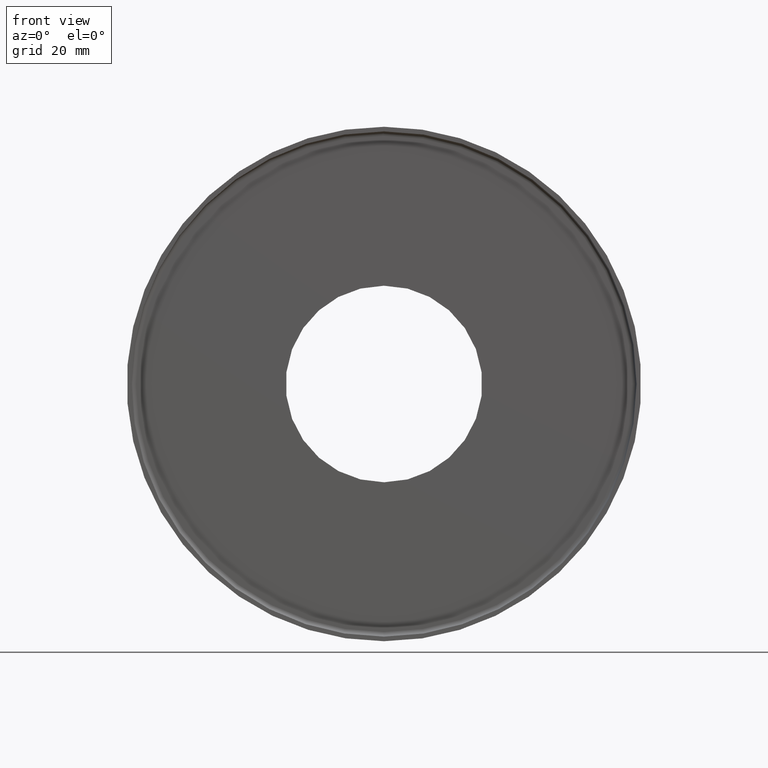
[diagram: clean part render]
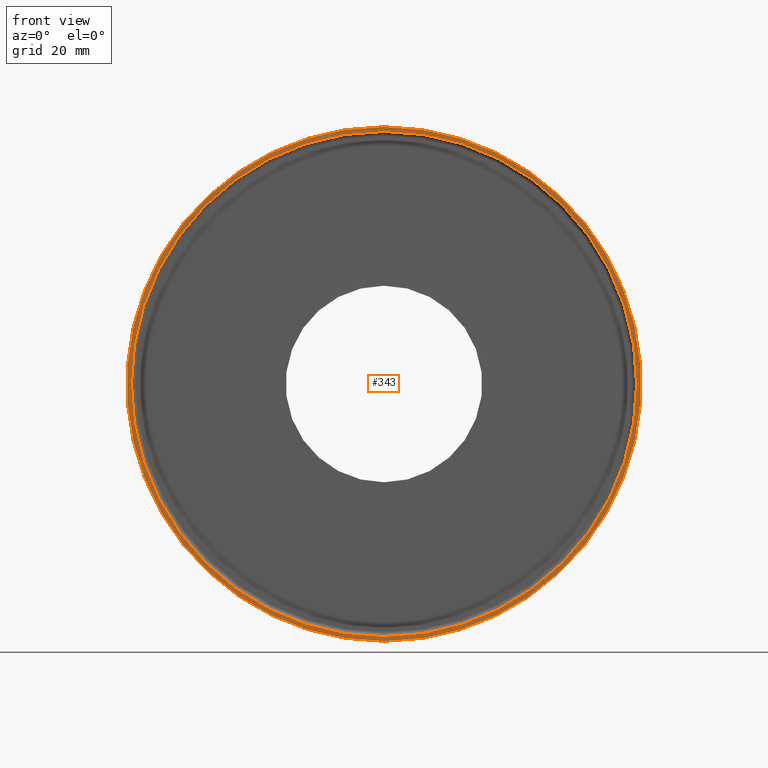
[diagram: same view with one face highlighted and labeled with its STEP entity id]
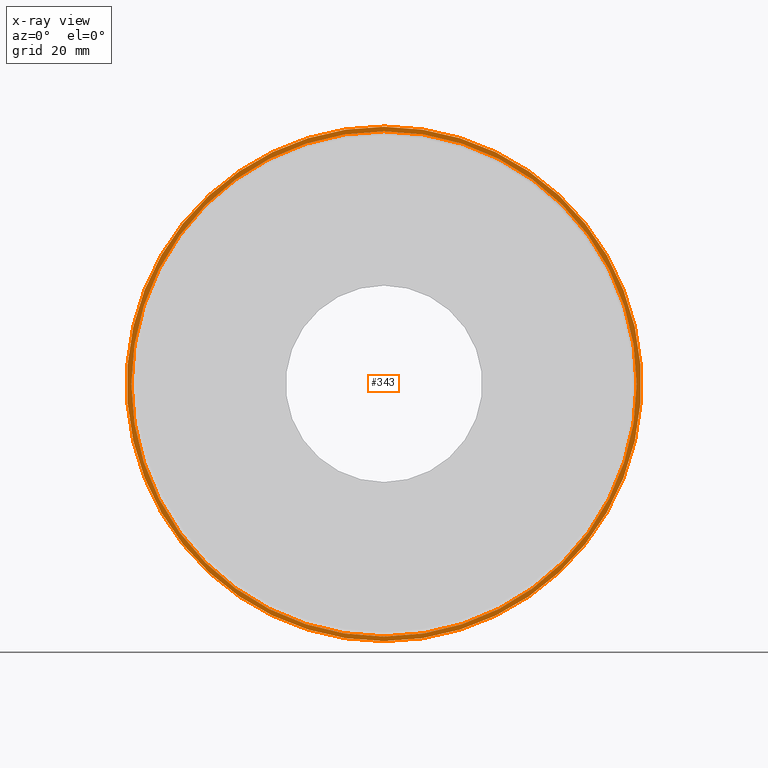
[diagram: x-ray of the same camera — body ghosted, the highlighted face saturated]
A machine part, front view. The second image highlights one B-rep face of the part: STEP entity #343.
The next image is the same camera in x-ray: the body ghosted, the highlighted face saturated — about 0% of this face is hidden behind the body in this view.
In plain terms, the highlighted planar face has unit normal (0, 1, 0).
Its self-contained STEP definition (entity closure, byte-faithful):
#19 = DIRECTION ( 'NONE',  ( 0.0000000000000000000, 1.000000000000000000, 0.0000000000000000000 ) ) ;
#41 = AXIS2_PLACEMENT_3D ( 'NONE', #135, #19, #226 ) ;
#47 = CARTESIAN_POINT ( 'NONE',  ( 6.858022075225179300E-015, 0.0000000000000000000, 56.00000000000000700 ) ) ;
#52 = DIRECTION ( 'NONE',  ( 0.0000000000000000000, 1.000000000000000000, 0.0000000000000000000 ) ) ;
#57 = PLANE ( 'NONE',  #394 ) ;
#73 = AXIS2_PLACEMENT_3D ( 'NONE', #395, #87, #362 ) ;
#74 = CARTESIAN_POINT ( 'NONE',  ( 6.735557395310444200E-015, 0.0000000000000000000, 55.00000000000000700 ) ) ;
#79 = EDGE_CURVE ( 'NONE', #251, #177, #169, .T. ) ;
#85 = CARTESIAN_POINT ( 'NONE',  ( 0.0000000000000000000, 0.0000000000000000000, 0.0000000000000000000 ) ) ;
#86 = DIRECTION ( 'NONE',  ( 0.0000000000000000000, -0.0000000000000000000, 1.000000000000000000 ) ) ;
#87 = DIRECTION ( 'NONE',  ( 0.0000000000000000000, 1.000000000000000000, 0.0000000000000000000 ) ) ;
#108 = CIRCLE ( 'NONE', #192, 55.00000000000000700 ) ;
#125 = CIRCLE ( 'NONE', #41, 56.00000000000000700 ) ;
#135 = CARTESIAN_POINT ( 'NONE',  ( 0.0000000000000000000, 0.0000000000000000000, 0.0000000000000000000 ) ) ;
#142 = EDGE_LOOP ( 'NONE', ( #397, #229 ) ) ;
#155 = ORIENTED_EDGE ( 'NONE', *, *, #79, .F. ) ;
#161 = CARTESIAN_POINT ( 'NONE',  ( 0.0000000000000000000, 0.0000000000000000000, 0.0000000000000000000 ) ) ;
#169 = CIRCLE ( 'NONE', #180, 56.00000000000000700 ) ;
#170 = CARTESIAN_POINT ( 'NONE',  ( 0.0000000000000000000, 0.0000000000000000000, 0.0000000000000000000 ) ) ;
#177 = VERTEX_POINT ( 'NONE', #47 ) ;
#180 = AXIS2_PLACEMENT_3D ( 'NONE', #161, #313, #339 ) ;
#192 = AXIS2_PLACEMENT_3D ( 'NONE', #170, #390, #197 ) ;
#197 = DIRECTION ( 'NONE',  ( 0.0000000000000000000, 0.0000000000000000000, 1.000000000000000000 ) ) ;
#224 = ORIENTED_EDGE ( 'NONE', *, *, #256, .F. ) ;
#226 = DIRECTION ( 'NONE',  ( 0.0000000000000000000, 0.0000000000000000000, 1.000000000000000000 ) ) ;
#229 = ORIENTED_EDGE ( 'NONE', *, *, #369, .T. ) ;
#241 = VERTEX_POINT ( 'NONE', #74 ) ;
#245 = VERTEX_POINT ( 'NONE', #348 ) ;
#248 = FACE_BOUND ( 'NONE', #142, .T. ) ;
#251 = VERTEX_POINT ( 'NONE', #350 ) ;
#256 = EDGE_CURVE ( 'NONE', #177, #251, #125, .T. ) ;
#293 = EDGE_LOOP ( 'NONE', ( #155, #224 ) ) ;
#312 = EDGE_CURVE ( 'NONE', #245, #241, #327, .T. ) ;
#313 = DIRECTION ( 'NONE',  ( 0.0000000000000000000, 1.000000000000000000, 0.0000000000000000000 ) ) ;
#327 = CIRCLE ( 'NONE', #73, 55.00000000000000700 ) ;
#339 = DIRECTION ( 'NONE',  ( 0.0000000000000000000, 0.0000000000000000000, 1.000000000000000000 ) ) ;
#343 = ADVANCED_FACE ( 'NONE', ( #248, #368 ), #57, .F. ) ;
#348 = CARTESIAN_POINT ( 'NONE',  ( 0.0000000000000000000, 0.0000000000000000000, -55.00000000000000700 ) ) ;
#350 = CARTESIAN_POINT ( 'NONE',  ( 0.0000000000000000000, 0.0000000000000000000, -56.00000000000000700 ) ) ;
#362 = DIRECTION ( 'NONE',  ( 0.0000000000000000000, 0.0000000000000000000, 1.000000000000000000 ) ) ;
#368 = FACE_OUTER_BOUND ( 'NONE', #293, .T. ) ;
#369 = EDGE_CURVE ( 'NONE', #241, #245, #108, .T. ) ;
#390 = DIRECTION ( 'NONE',  ( 0.0000000000000000000, 1.000000000000000000, 0.0000000000000000000 ) ) ;
#394 = AXIS2_PLACEMENT_3D ( 'NONE', #85, #52, #86 ) ;
#395 = CARTESIAN_POINT ( 'NONE',  ( 0.0000000000000000000, 0.0000000000000000000, 0.0000000000000000000 ) ) ;
#397 = ORIENTED_EDGE ( 'NONE', *, *, #312, .T. ) ;